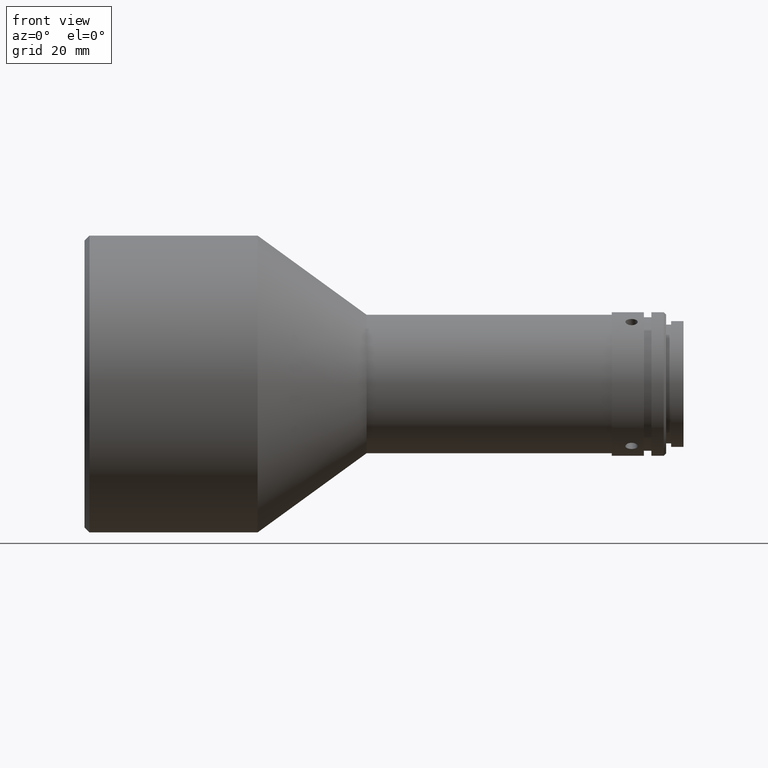
[diagram: clean part render]
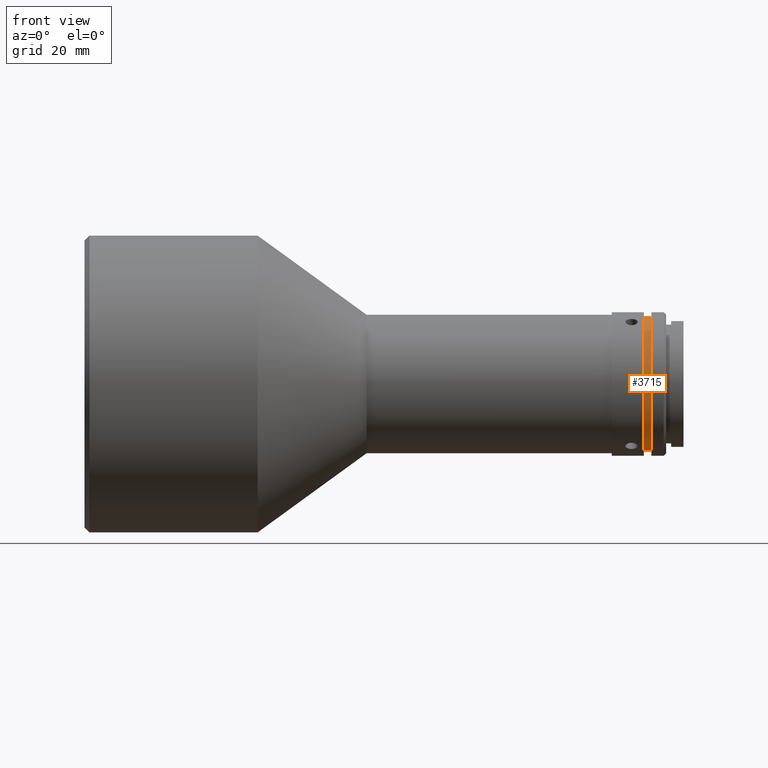
[diagram: same view with one face highlighted and labeled with its STEP entity id]
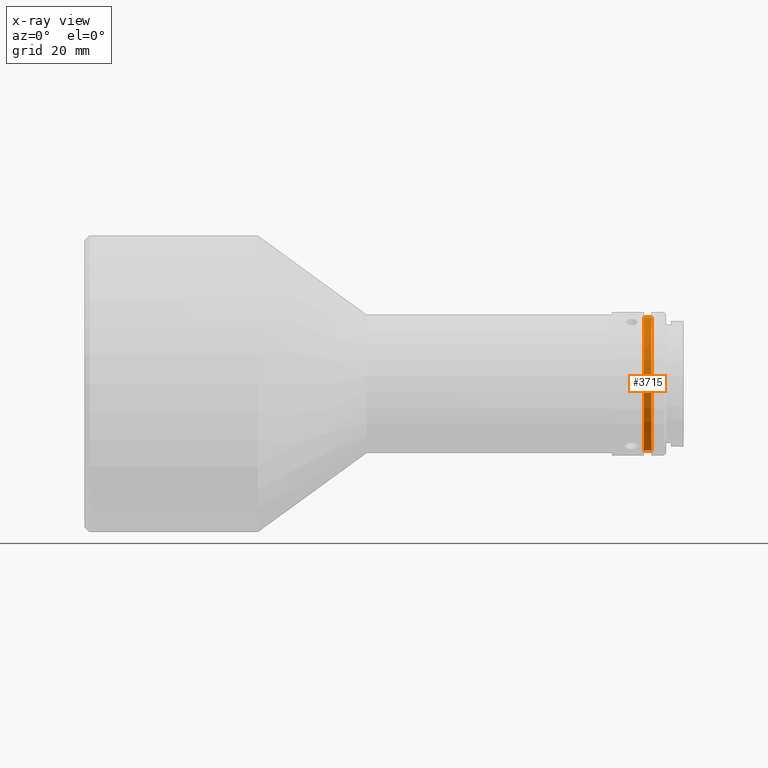
[diagram: x-ray of the same camera — body ghosted, the highlighted face saturated]
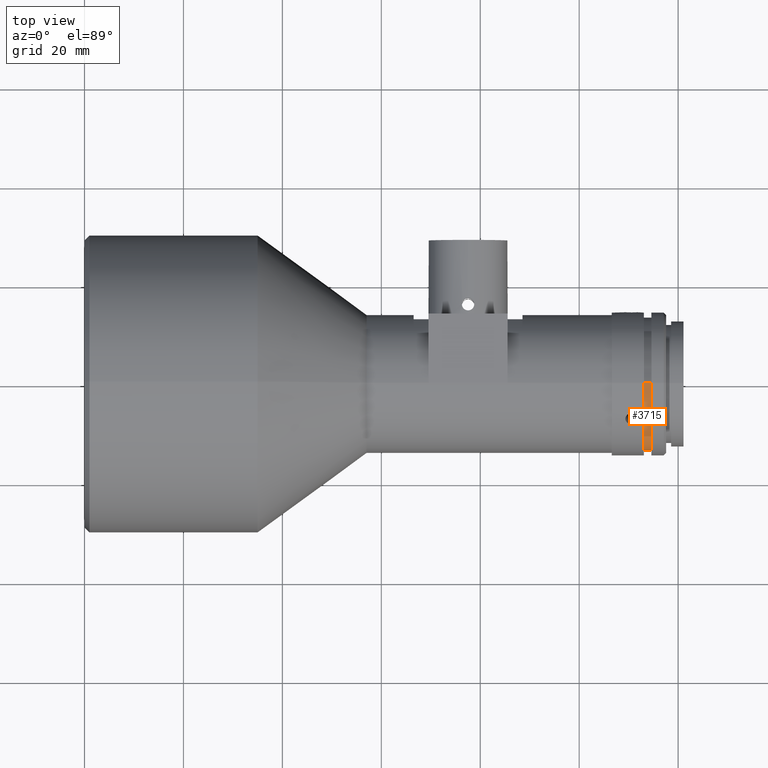
[diagram: same view with one face highlighted and labeled with its STEP entity id]
A machine part, front view. The second image highlights one B-rep face of the part: STEP entity #3715.
The next image is the same camera in x-ray: the body ghosted, the highlighted face saturated — about 0% of this face is hidden behind the body in this view.
A second angle (top view) of the same face is appended — the face is thin or edge-on in the first view.
In plain terms, the highlighted cylindrical surface (partial cylindrical patch) has radius 13.5 mm, axis along (-1, -0, -0).
Its self-contained STEP definition (entity closure, byte-faithful):
#62 = CARTESIAN_POINT ( 'NONE',  ( 74.34930454845090300, 0.0000000000000000000, 0.0000000000000000000 ) ) ;
#77 = CARTESIAN_POINT ( 'NONE',  ( 74.34930454845090300, 1.653273178848927100E-015, -13.50000000000000200 ) ) ;
#94 = CARTESIAN_POINT ( 'NONE',  ( 113.0899999999999900, 1.653273178848927100E-015, -13.50000000000000200 ) ) ;
#146 = VECTOR ( 'NONE', #3543, 1000.000000000000000 ) ;
#275 = AXIS2_PLACEMENT_3D ( 'NONE', #3233, #2941, #1272 ) ;
#642 = VERTEX_POINT ( 'NONE', #891 ) ;
#879 = ORIENTED_EDGE ( 'NONE', *, *, #2617, .T. ) ;
#891 = CARTESIAN_POINT ( 'NONE',  ( 114.5900000000000000, 1.653273178848927100E-015, -13.50000000000000200 ) ) ;
#967 = ORIENTED_EDGE ( 'NONE', *, *, #1300, .F. ) ;
#1032 = EDGE_LOOP ( 'NONE', ( #967, #879, #2462, #1224 ) ) ;
#1098 = VECTOR ( 'NONE', #1568, 1000.000000000000000 ) ;
#1172 = AXIS2_PLACEMENT_3D ( 'NONE', #62, #2185, #1868 ) ;
#1224 = ORIENTED_EDGE ( 'NONE', *, *, #1905, .F. ) ;
#1272 = DIRECTION ( 'NONE',  ( 0.0000000000000000000, 0.0000000000000000000, 1.000000000000000000 ) ) ;
#1300 = EDGE_CURVE ( 'NONE', #642, #3785, #2113, .T. ) ;
#1466 = DIRECTION ( 'NONE',  ( -1.000000000000000000, -0.0000000000000000000, -0.0000000000000000000 ) ) ;
#1568 = DIRECTION ( 'NONE',  ( -1.000000000000000000, -0.0000000000000000000, -0.0000000000000000000 ) ) ;
#1758 = LINE ( 'NONE', #2644, #146 ) ;
#1815 = VERTEX_POINT ( 'NONE', #2454 ) ;
#1819 = CIRCLE ( 'NONE', #3384, 13.50000000000000200 ) ;
#1868 = DIRECTION ( 'NONE',  ( 0.0000000000000000000, 0.0000000000000000000, 1.000000000000000000 ) ) ;
#1905 = EDGE_CURVE ( 'NONE', #3785, #1815, #2217, .T. ) ;
#2113 = LINE ( 'NONE', #77, #1098 ) ;
#2185 = DIRECTION ( 'NONE',  ( -1.000000000000000000, -0.0000000000000000000, -0.0000000000000000000 ) ) ;
#2217 = CIRCLE ( 'NONE', #275, 13.50000000000000200 ) ;
#2389 = FACE_OUTER_BOUND ( 'NONE', #1032, .T. ) ;
#2454 = CARTESIAN_POINT ( 'NONE',  ( 113.0899999999999900, 0.0000000000000000000, 13.50000000000000200 ) ) ;
#2462 = ORIENTED_EDGE ( 'NONE', *, *, #3080, .T. ) ;
#2586 = CARTESIAN_POINT ( 'NONE',  ( 114.5900000000000000, 0.0000000000000000000, 13.50000000000000200 ) ) ;
#2617 = EDGE_CURVE ( 'NONE', #642, #3445, #1819, .T. ) ;
#2644 = CARTESIAN_POINT ( 'NONE',  ( 74.34930454845090300, 0.0000000000000000000, 13.50000000000000200 ) ) ;
#2941 = DIRECTION ( 'NONE',  ( -1.000000000000000000, -0.0000000000000000000, -0.0000000000000000000 ) ) ;
#3080 = EDGE_CURVE ( 'NONE', #3445, #1815, #1758, .T. ) ;
#3233 = CARTESIAN_POINT ( 'NONE',  ( 113.0899999999999900, 0.0000000000000000000, 0.0000000000000000000 ) ) ;
#3307 = CARTESIAN_POINT ( 'NONE',  ( 114.5900000000000000, 0.0000000000000000000, 0.0000000000000000000 ) ) ;
#3384 = AXIS2_PLACEMENT_3D ( 'NONE', #3307, #1466, #3613 ) ;
#3445 = VERTEX_POINT ( 'NONE', #2586 ) ;
#3543 = DIRECTION ( 'NONE',  ( -1.000000000000000000, -0.0000000000000000000, -0.0000000000000000000 ) ) ;
#3613 = DIRECTION ( 'NONE',  ( 0.0000000000000000000, 0.0000000000000000000, 1.000000000000000000 ) ) ;
#3715 = ADVANCED_FACE ( 'NONE', ( #2389 ), #3853, .T. ) ;
#3785 = VERTEX_POINT ( 'NONE', #94 ) ;
#3853 = CYLINDRICAL_SURFACE ( 'NONE', #1172, 13.50000000000000200 ) ;